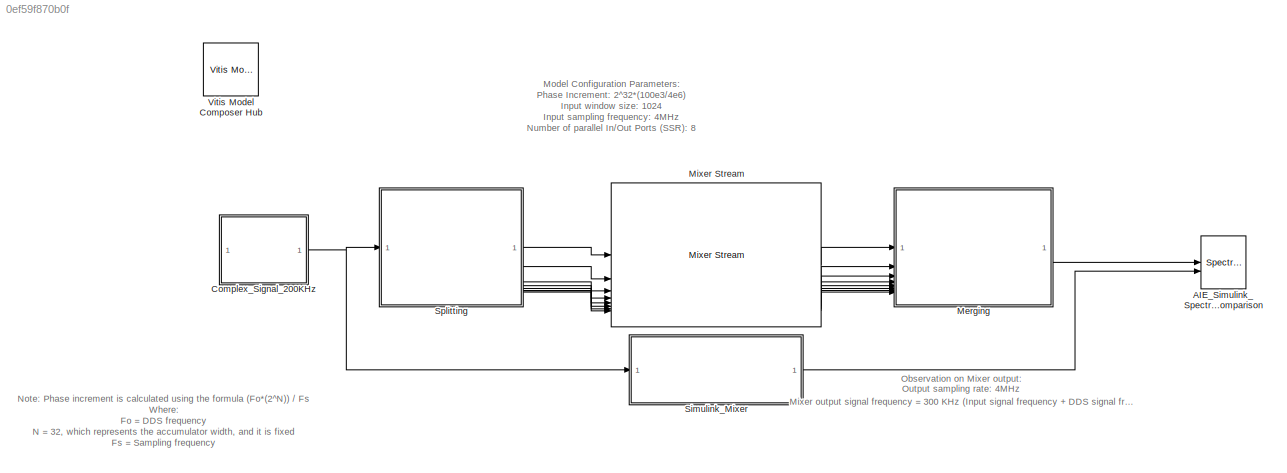
MODEL slx_0ef59f870b0f
KIND model
CONFIG AbsTol = auto
CONFIG EnableMultiTasking = off
CONFIG FixedStep = auto
CONFIG MaxStep = auto
CONFIG MinStep = auto
CONFIG RelTol = 1e-3
CONFIG SampleTimeConstraint = Unconstrained
CONFIG SolverName = VariableStepAuto
CONFIG StartTime = 0.0
CONFIG StopTime = 1
BLOCK [SpectrumAnalyzer] AIE_Simulink_Spectrum_Comparison
  AllowFFTLengthLessThanSamplesPerUpdate = on
  AveragingMethod = Exponential
  ChannelNames = [""]
  DefaultConfigurationName = spbscopes.SpectrumAnalyzerBlockCfg
  NumInputPorts = 2
  ScopeSpecificationString = spbscopes.SpectrumAnalyzerBlockCfg('CurrentConfiguration', extmgr.ConfigurationSet(extmgr.Configuration('Core','General UI',true,'FigureColor',[0.16        0.16        0.16]),extmgr.Configuration('Visuals','Spectrum',true,'Title','','YLabel','','MinYLim','-39.0774','MaxYLim','37.0279','Legend',true,'AxesProperties',struct('XGrid',{'on','on'},'YGrid',{'on','on'},'ZGrid',{'on','on'},'Color',{[0 0 0]...<+2406ch>
  ShowLegend = on
  WasSavedAsWebScope = on
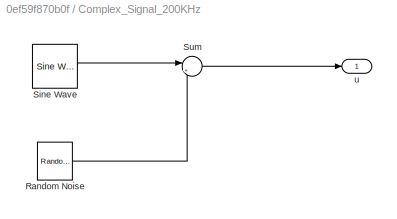
BLOCK [SubSystem] Complex_Signal_200KHz
BLOCK [Reference] Complex_Signal_200KHz/Random Noise  REF=dspobslib/Random
Source
  SourceBlock = dspobslib/Random\nSource
  SourceType = Random Source Obsolete
  UserDataPersistent = on
BLOCK [Reference] Complex_Signal_200KHz/Sine Wave  REF=dspsrcs4/Sine Wave
  SourceBlock = dspsrcs4/Sine Wave
  SourceType = Sine Wave
BLOCK [Sum] Complex_Signal_200KHz/Sum
  Inputs = |++
BLOCK [Outport] Complex_Signal_200KHz/u
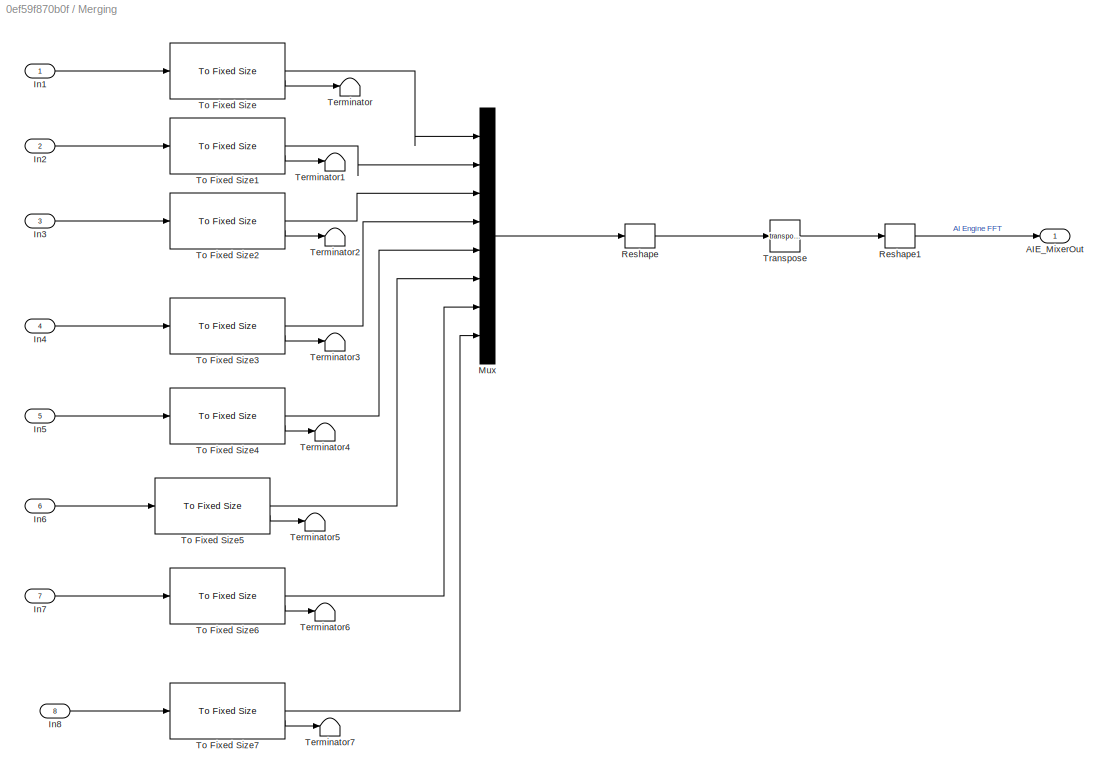
BLOCK [SubSystem] Merging
BLOCK [Outport] Merging/AIE_MixerOut
BLOCK [Inport] Merging/In1
BLOCK [Inport] Merging/In2
  Port = 2
BLOCK [Inport] Merging/In3
  Port = 3
BLOCK [Inport] Merging/In4
  Port = 4
BLOCK [Inport] Merging/In5
  Port = 5
BLOCK [Inport] Merging/In6
  Port = 6
BLOCK [Inport] Merging/In7
  Port = 7
BLOCK [Inport] Merging/In8
  Port = 8
BLOCK [Mux] Merging/Mux
  DisplayOption = bar
  Inputs = 8
BLOCK [Reshape] Merging/Reshape
  OutputDimensionality = Customize
  OutputDimensions = [128, 8]
BLOCK [Reshape] Merging/Reshape1
  OutputDimensions = [1, 10]
BLOCK [Terminator] Merging/Terminator
BLOCK [Terminator] Merging/Terminator1
BLOCK [Terminator] Merging/Terminator2
BLOCK [Terminator] Merging/Terminator3
BLOCK [Terminator] Merging/Terminator4
BLOCK [Terminator] Merging/Terminator5
BLOCK [Terminator] Merging/Terminator6
BLOCK [Terminator] Merging/Terminator7
BLOCK [Reference] Merging/To Fixed Size  REF=aieUtilities/To Fixed Size
  SourceBlock = aieUtilities/To Fixed Size
  SourceType = To Fixed Size
BLOCK [Reference] Merging/To Fixed Size1  REF=aieUtilities/To Fixed Size
  SourceBlock = aieUtilities/To Fixed Size
  SourceType = To Fixed Size
BLOCK [Reference] Merging/To Fixed Size2  REF=aieUtilities/To Fixed Size
  SourceBlock = aieUtilities/To Fixed Size
  SourceType = To Fixed Size
BLOCK [Reference] Merging/To Fixed Size3  REF=aieUtilities/To Fixed Size
  SourceBlock = aieUtilities/To Fixed Size
  SourceType = To Fixed Size
BLOCK [Reference] Merging/To Fixed Size4  REF=aieUtilities/To Fixed Size
  SourceBlock = aieUtilities/To Fixed Size
  SourceType = To Fixed Size
BLOCK [Reference] Merging/To Fixed Size5  REF=aieUtilities/To Fixed Size
  SourceBlock = aieUtilities/To Fixed Size
  SourceType = To Fixed Size
BLOCK [Reference] Merging/To Fixed Size6  REF=aieUtilities/To Fixed Size
  SourceBlock = aieUtilities/To Fixed Size
  SourceType = To Fixed Size
BLOCK [Reference] Merging/To Fixed Size7  REF=aieUtilities/To Fixed Size
  SourceBlock = aieUtilities/To Fixed Size
  SourceType = To Fixed Size
BLOCK [Math] Merging/Transpose
  Operator = transpose
BLOCK [Reference] Mixer Stream  REF=aieDSP/Mixer Stream
  SourceBlock = aieDSP/Mixer Stream
  SourceType = Mixer Stream
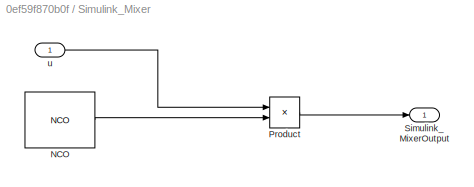
BLOCK [SubSystem] Simulink_Mixer
BLOCK [Reference] Simulink_Mixer/NCO  REF=dspsigops/NCO
  SourceBlock = dspsigops/NCO
  SourceType = NCO
BLOCK [Product] Simulink_Mixer/Product
BLOCK [Outport] Simulink_Mixer/Simulink_MixerOutput
BLOCK [Inport] Simulink_Mixer/u
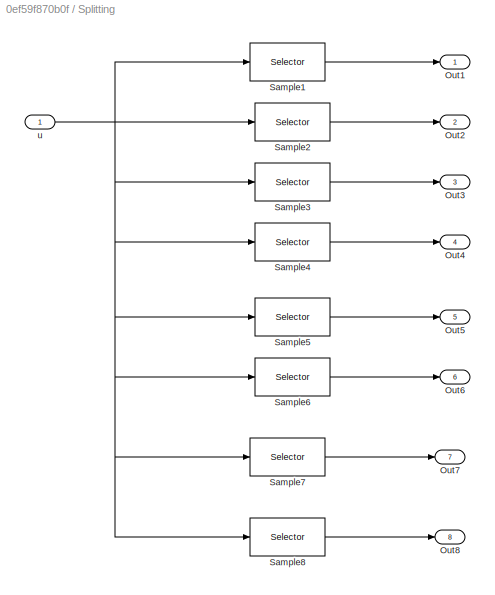
BLOCK [SubSystem] Splitting
BLOCK [Outport] Splitting/Out1
BLOCK [Outport] Splitting/Out2
  Port = 2
BLOCK [Outport] Splitting/Out3
  Port = 3
BLOCK [Outport] Splitting/Out4
  Port = 4
BLOCK [Outport] Splitting/Out5
  Port = 5
BLOCK [Outport] Splitting/Out6
  Port = 6
BLOCK [Outport] Splitting/Out7
  Port = 7
BLOCK [Outport] Splitting/Out8
  Port = 8
BLOCK [Selector] Splitting/Sample1
  IndexOptions = Index vector (dialog)
  Indices = 1:8:1024
  InputPortWidth = 1024
  OutputSizes = 1
BLOCK [Selector] Splitting/Sample2
  IndexOptions = Index vector (dialog)
  Indices = 2:8:1024
  InputPortWidth = 1024
  OutputSizes = 1
BLOCK [Selector] Splitting/Sample3
  IndexOptions = Index vector (dialog)
  Indices = 3:8:1024
  InputPortWidth = 1024
  OutputSizes = 1
BLOCK [Selector] Splitting/Sample4
  IndexOptions = Index vector (dialog)
  Indices = 4:8:1024
  InputPortWidth = 1024
  OutputSizes = 1
BLOCK [Selector] Splitting/Sample5
  IndexOptions = Index vector (dialog)
  Indices = 5:8:1024
  InputPortWidth = 1024
  OutputSizes = 1
BLOCK [Selector] Splitting/Sample6
  IndexOptions = Index vector (dialog)
  Indices = 6:8:1024
  InputPortWidth = 1024
  OutputSizes = 1
BLOCK [Selector] Splitting/Sample7
  IndexOptions = Index vector (dialog)
  Indices = 7:8:1024
  InputPortWidth = 1024
  OutputSizes = 1
BLOCK [Selector] Splitting/Sample8
  IndexOptions = Index vector (dialog)
  Indices = 8:8:1024
  InputPortWidth = 1024
  OutputSizes = 1
BLOCK [Inport] Splitting/u
BLOCK [Reference] Vitis Model Composer Hub  REF=vmcUtilities/Vitis Model Composer Hub
  SourceBlock = vmcUtilities/Vitis Model Composer Hub
  SourceType = VMC Hub
  Tag = genX
  UserDataPersistent = on
ANNOTATION (root): Model Configuration Parameters: Phase Increment: 2^32*(100e3/4e6) Input window size: 1024 Input sampling frequency: 4MHz Number of parallel In/Out Ports (SSR): 8
ANNOTATION (root): Note : Phase increment is calculated using the formula (Fo*(2^N)) / Fs Where: Fo = DDS frequency N = 32, which represents the accumulator width, and it is fixed Fs = Sampling frequency
ANNOTATION (root): Observation on Mixer output: Mixer output signal frequency = 300 KHz (Input signal frequency + DDS signal frequency) Output sampling rate: 4MHz
LINE Complex_Signal_200KHz/Random Noise:1 -> Complex_Signal_200KHz/Sum:2
LINE Complex_Signal_200KHz/Sine Wave:1 -> Complex_Signal_200KHz/Sum:1
LINE Complex_Signal_200KHz/Sum:1 -> Complex_Signal_200KHz/u:1
NET Complex_Signal_200KHz:1 -> Simulink_Mixer:1, Splitting:1
LINE Merging/In1:1 -> Merging/To Fixed Size:1
LINE Merging/In2:1 -> Merging/To Fixed Size1:1
LINE Merging/In3:1 -> Merging/To Fixed Size2:1
LINE Merging/In4:1 -> Merging/To Fixed Size3:1
LINE Merging/In5:1 -> Merging/To Fixed Size4:1
LINE Merging/In6:1 -> Merging/To Fixed Size5:1
LINE Merging/In7:1 -> Merging/To Fixed Size6:1
LINE Merging/In8:1 -> Merging/To Fixed Size7:1
LINE Merging/Mux:1 -> Merging/Reshape:1
LINE Merging/Reshape1:1 -> Merging/AIE_MixerOut:1
LINE Merging/Reshape:1 -> Merging/Transpose:1
LINE Merging/To Fixed Size1:1 -> Merging/Mux:2
LINE Merging/To Fixed Size1:2 -> Merging/Terminator1:1
LINE Merging/To Fixed Size2:1 -> Merging/Mux:3
LINE Merging/To Fixed Size2:2 -> Merging/Terminator2:1
LINE Merging/To Fixed Size3:1 -> Merging/Mux:4
LINE Merging/To Fixed Size3:2 -> Merging/Terminator3:1
LINE Merging/To Fixed Size4:1 -> Merging/Mux:5
LINE Merging/To Fixed Size4:2 -> Merging/Terminator4:1
LINE Merging/To Fixed Size5:1 -> Merging/Mux:6
LINE Merging/To Fixed Size5:2 -> Merging/Terminator5:1
LINE Merging/To Fixed Size6:1 -> Merging/Mux:7
LINE Merging/To Fixed Size6:2 -> Merging/Terminator6:1
LINE Merging/To Fixed Size7:1 -> Merging/Mux:8
LINE Merging/To Fixed Size7:2 -> Merging/Terminator7:1
LINE Merging/To Fixed Size:1 -> Merging/Mux:1
LINE Merging/To Fixed Size:2 -> Merging/Terminator:1
LINE Merging/Transpose:1 -> Merging/Reshape1:1
LINE Merging:1 -> AIE_Simulink_Spectrum_Comparison:1
LINE Mixer Stream:1 -> Merging:1
LINE Mixer Stream:2 -> Merging:2
LINE Mixer Stream:3 -> Merging:3
LINE Mixer Stream:4 -> Merging:4
LINE Mixer Stream:5 -> Merging:5
LINE Mixer Stream:6 -> Merging:6
LINE Mixer Stream:7 -> Merging:7
LINE Mixer Stream:8 -> Merging:8
LINE Simulink_Mixer/NCO:1 -> Simulink_Mixer/Product:2
LINE Simulink_Mixer/Product:1 -> Simulink_Mixer/Simulink_MixerOutput:1
LINE Simulink_Mixer/u:1 -> Simulink_Mixer/Product:1
LINE Simulink_Mixer:1 -> AIE_Simulink_Spectrum_Comparison:2
LINE Splitting/Sample1:1 -> Splitting/Out1:1
LINE Splitting/Sample2:1 -> Splitting/Out2:1
LINE Splitting/Sample3:1 -> Splitting/Out3:1
LINE Splitting/Sample4:1 -> Splitting/Out4:1
LINE Splitting/Sample5:1 -> Splitting/Out5:1
LINE Splitting/Sample6:1 -> Splitting/Out6:1
LINE Splitting/Sample7:1 -> Splitting/Out7:1
LINE Splitting/Sample8:1 -> Splitting/Out8:1
NET Splitting/u:1 -> Splitting/Sample1:1, Splitting/Sample2:1, Splitting/Sample3:1, Splitting/Sample4:1, Splitting/Sample5:1, Splitting/Sample6:1, Splitting/Sample7:1, Splitting/Sample8:1
LINE Splitting:1 -> Mixer Stream:1
LINE Splitting:2 -> Mixer Stream:2
LINE Splitting:3 -> Mixer Stream:3
LINE Splitting:4 -> Mixer Stream:4
LINE Splitting:5 -> Mixer Stream:5
LINE Splitting:6 -> Mixer Stream:6
LINE Splitting:7 -> Mixer Stream:7
LINE Splitting:8 -> Mixer Stream:8
note: NET lines group one-source signal fan-out (src -> all destinations, sorted); 1:1 wires keep LINE
